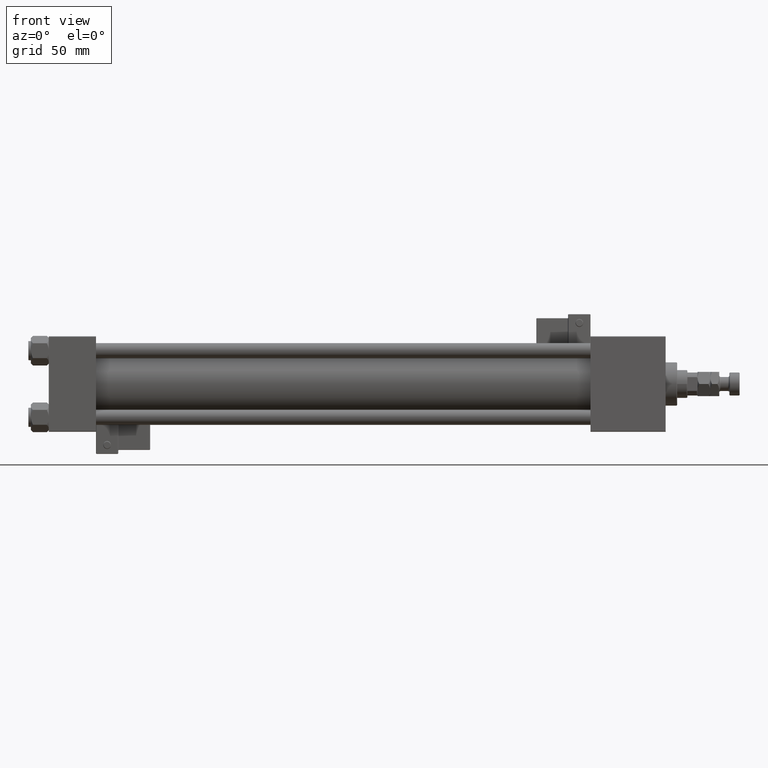
[diagram: clean part render]
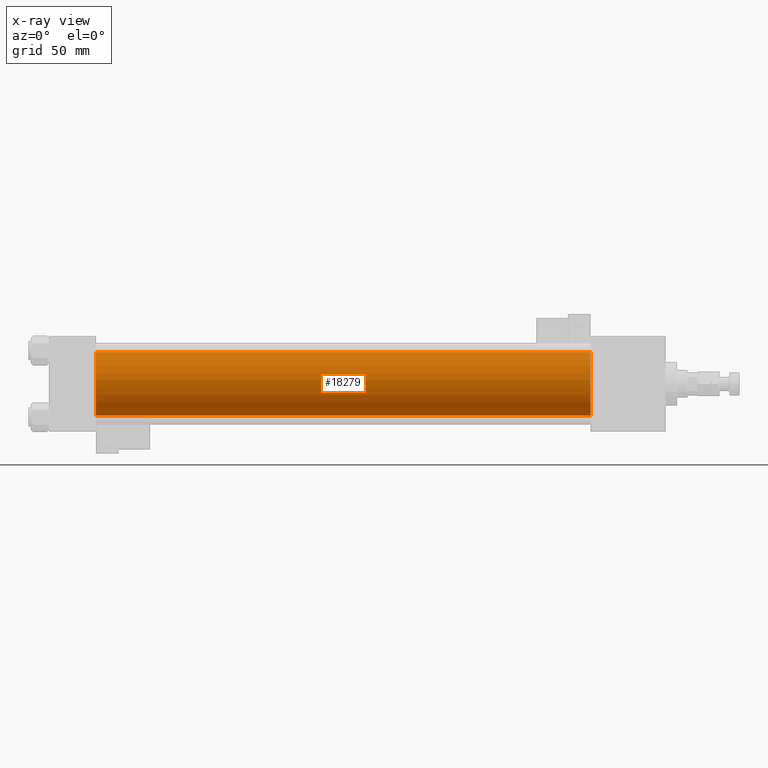
[diagram: x-ray — body ghosted, one internal face saturated and labeled with its STEP entity id]
A machine part, front view, then the same camera in x-ray: the body is ghosted and one INTERNAL B-rep face — a face not visible from any outside direction — is saturated and labeled: STEP entity #18279.
In plain terms, the highlighted cylindrical surface (edge-blend (fillet) strip) has radius 25 mm, axis along (-1, -0, -0).
Its self-contained STEP definition (entity closure, byte-faithful):
#1126 = CARTESIAN_POINT ( 'NONE',  ( 37.00000000000000000, 4.595317839031718093E-16, -25.00000000000000000 ) ) ;
#1629 = VERTEX_POINT ( 'NONE', #9270 ) ;
#4540 = DIRECTION ( 'NONE',  ( -1.000000000000000000, -0.000000000000000000, -0.000000000000000000 ) ) ;
#5056 = CARTESIAN_POINT ( 'NONE',  ( 425.0000000000000000, -2.602085213965210642E-15, 0.000000000000000000 ) ) ;
#5598 = ORIENTED_EDGE ( 'NONE', *, *, #46067, .T. ) ;
#7340 = EDGE_LOOP ( 'NONE', ( #33030, #5598, #16709, #34599 ) ) ;
#8617 = DIRECTION ( 'NONE',  ( 1.000000000000000000, 0.000000000000000000, 0.000000000000000000 ) ) ;
#9270 = CARTESIAN_POINT ( 'NONE',  ( 37.00000000000000000, -2.602085213965210642E-15, 25.00000000000000000 ) ) ;
#14536 = CARTESIAN_POINT ( 'NONE',  ( 37.00000000000000000, -2.602085213965210642E-15, 0.000000000000000000 ) ) ;
#15435 = CIRCLE ( 'NONE', #46052, 25.00000000000000000 ) ;
#16537 = EDGE_CURVE ( 'NONE', #19881, #38438, #15435, .T. ) ;
#16709 = ORIENTED_EDGE ( 'NONE', *, *, #40378, .F. ) ;
#17411 = VECTOR ( 'NONE', #4540, 1000.000000000000000 ) ;
#18279 = ADVANCED_FACE ( 'NONE', ( #41788 ), #34386, .F. ) ;
#19881 = VERTEX_POINT ( 'NONE', #30596 ) ;
#21153 = CARTESIAN_POINT ( 'NONE',  ( 425.0000000000000000, 4.595317839031718093E-16, -25.00000000000000000 ) ) ;
#22493 = DIRECTION ( 'NONE',  ( 1.000000000000000000, 0.000000000000000000, 0.000000000000000000 ) ) ;
#23067 = VECTOR ( 'NONE', #48823, 1000.000000000000000 ) ;
#27984 = LINE ( 'NONE', #54024, #23067 ) ;
#29463 = DIRECTION ( 'NONE',  ( -1.000000000000000000, -0.000000000000000000, -0.000000000000000000 ) ) ;
#30280 = DIRECTION ( 'NONE',  ( 0.000000000000000000, 0.000000000000000000, 1.000000000000000000 ) ) ;
#30550 = EDGE_CURVE ( 'NONE', #19881, #1629, #27984, .T. ) ;
#30596 = CARTESIAN_POINT ( 'NONE',  ( 425.0000000000000000, -2.602085213965210642E-15, 25.00000000000000000 ) ) ;
#31534 = DIRECTION ( 'NONE',  ( 0.000000000000000000, 0.000000000000000000, -1.000000000000000000 ) ) ;
#33030 = ORIENTED_EDGE ( 'NONE', *, *, #16537, .T. ) ;
#33570 = CARTESIAN_POINT ( 'NONE',  ( 425.0000000000000000, -2.602085213965210642E-15, 0.000000000000000000 ) ) ;
#34386 = CYLINDRICAL_SURFACE ( 'NONE', #54023, 25.00000000000000000 ) ;
#34599 = ORIENTED_EDGE ( 'NONE', *, *, #30550, .F. ) ;
#38438 = VERTEX_POINT ( 'NONE', #21153 ) ;
#38445 = VERTEX_POINT ( 'NONE', #1126 ) ;
#39053 = CIRCLE ( 'NONE', #40811, 25.00000000000000000 ) ;
#40378 = EDGE_CURVE ( 'NONE', #1629, #38445, #39053, .T. ) ;
#40811 = AXIS2_PLACEMENT_3D ( 'NONE', #14536, #22493, #31534 ) ;
#41788 = FACE_OUTER_BOUND ( 'NONE', #7340, .T. ) ;
#42078 = CARTESIAN_POINT ( 'NONE',  ( 425.0000000000000000, 4.595317839031718093E-16, -25.00000000000000000 ) ) ;
#46052 = AXIS2_PLACEMENT_3D ( 'NONE', #5056, #8617, #46427 ) ;
#46067 = EDGE_CURVE ( 'NONE', #38438, #38445, #46198, .T. ) ;
#46198 = LINE ( 'NONE', #42078, #17411 ) ;
#46427 = DIRECTION ( 'NONE',  ( 0.000000000000000000, 0.000000000000000000, -1.000000000000000000 ) ) ;
#48823 = DIRECTION ( 'NONE',  ( -1.000000000000000000, -0.000000000000000000, -0.000000000000000000 ) ) ;
#54023 = AXIS2_PLACEMENT_3D ( 'NONE', #33570, #29463, #30280 ) ;
#54024 = CARTESIAN_POINT ( 'NONE',  ( 425.0000000000000000, -2.602085213965210642E-15, 25.00000000000000000 ) ) ;